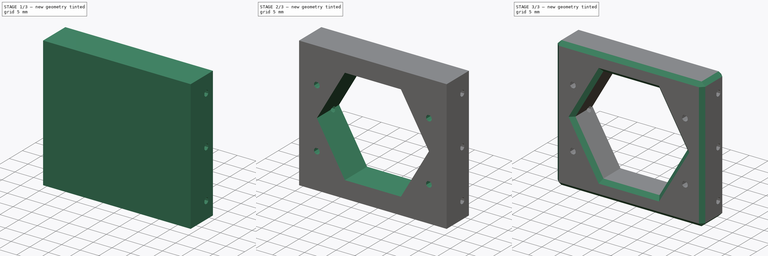
[diagram: build sequence overview — one tinted view per stage of 3, left to right]
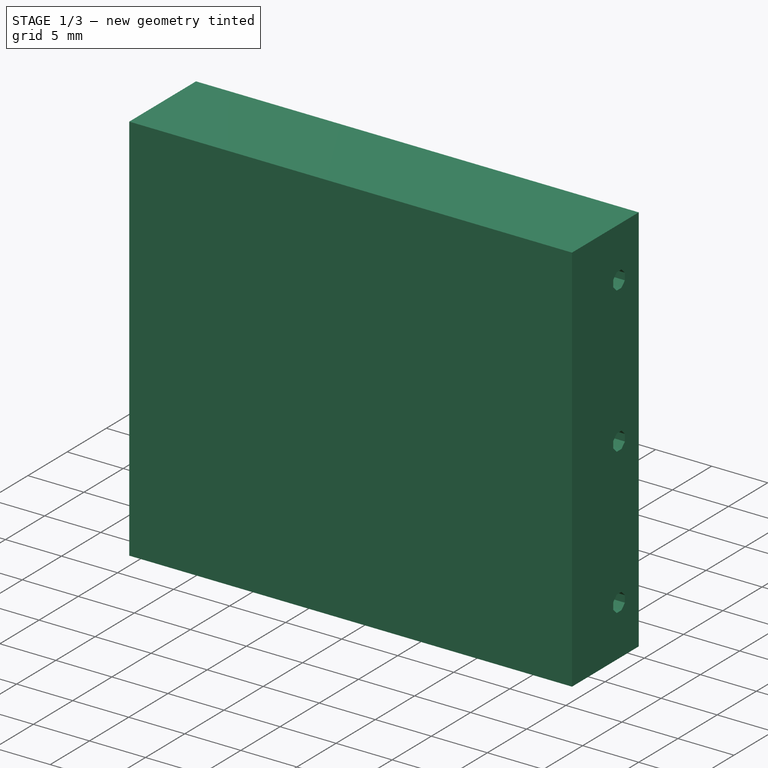
[diagram: stage 1 of 3 — iso view after this stage's code; geometry added in this stage tinted green]
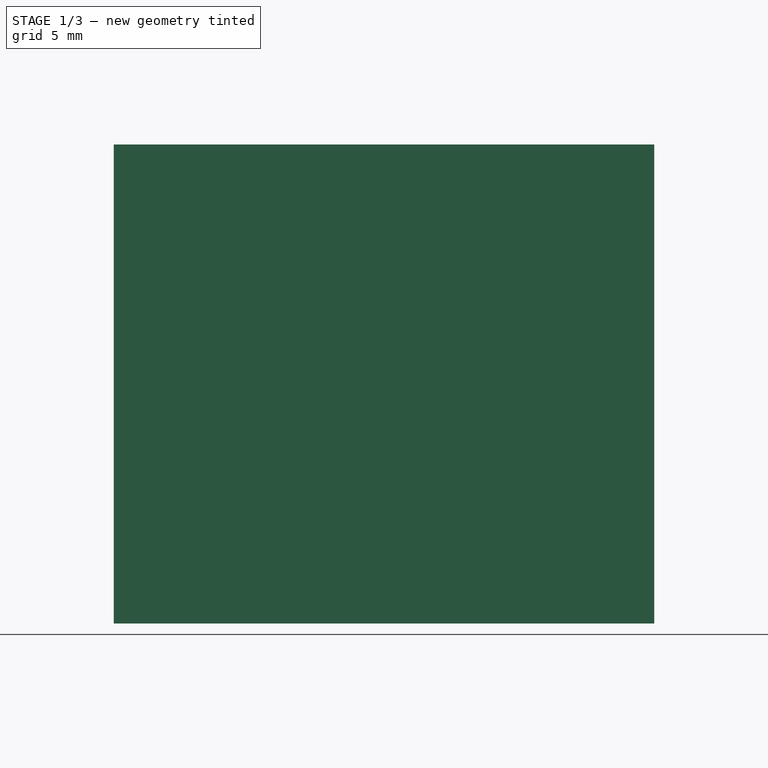
[diagram: stage 1 of 3 — front view after this stage's code; geometry added in this stage tinted green]
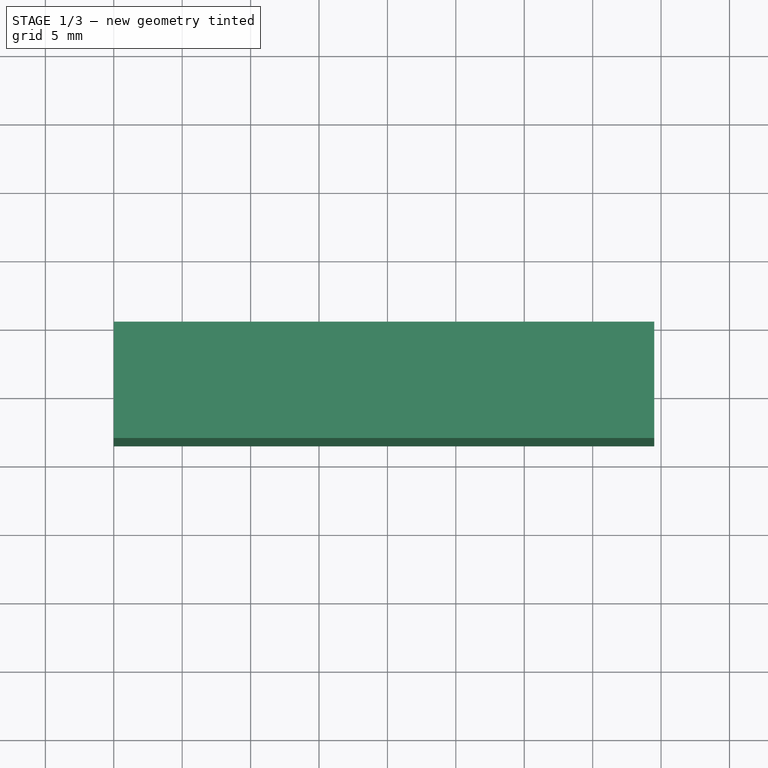
[diagram: stage 1 of 3 — top view after this stage's code; geometry added in this stage tinted green]
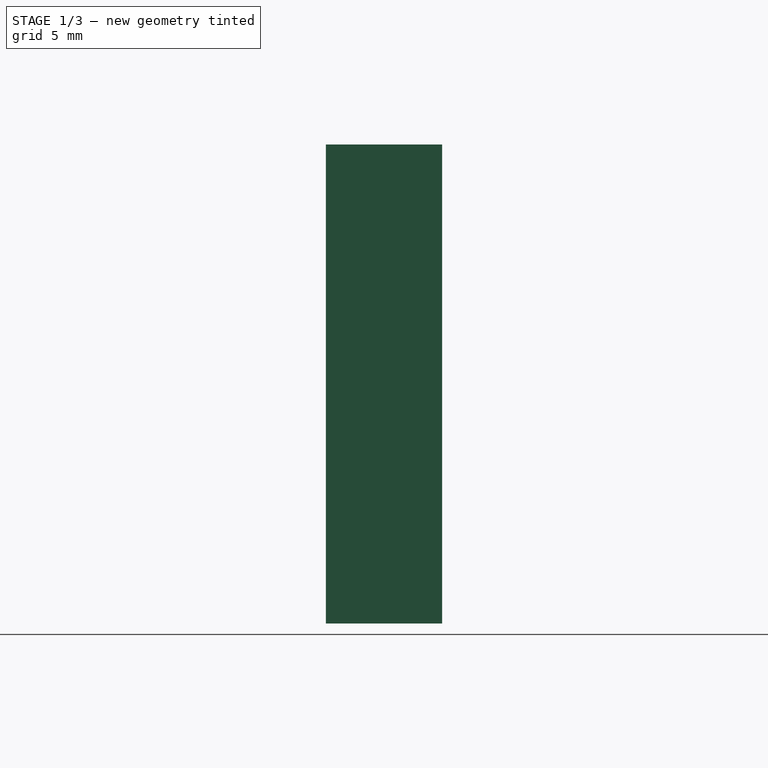
[diagram: stage 1 of 3 — right view after this stage's code; geometry added in this stage tinted green]
FCSTD DOCUMENT  (FreeCAD 0.21R33668 +26 (Git))
Label: Leg_frame_front
License: All rights reserved
LicenseURL: http://en.wikipedia.org/wiki/All_rights_reserved
objects: Sketcher::SketchObject×4, PartDesign::Pocket×3, PartDesign::Chamfer×2, PartDesign::Pad×1, PartDesign::Body×1
note: 17 computed .brp shape members not serialized (recipe doc carries the construction recipe); baked Part::Feature solids carry a one-line shape summary decoded from their .brp

FEATURE [Sketcher::SketchObject] Sketch
  FullyConstrained = true
  MapMode = 5
  Placement = pos=(0,0,0) rot=(1,0,0;1.5708rad)
  Support = -> [XZ_Plane]
  sketch-geometry (4):
    g0: LineSegment StartX=0 StartY=0 StartZ=0 EndX=39.5 EndY=0 EndZ=0
    g1: LineSegment StartX=39.5 StartY=0 StartZ=0 EndX=39.5 EndY=35 EndZ=0
    g2: LineSegment StartX=39.5 StartY=35 StartZ=0 EndX=0 EndY=35 EndZ=0
    g3: LineSegment StartX=0 StartY=35 StartZ=0 EndX=0 EndY=0 EndZ=0
  constraints (11):
    c: Coincident(g0,g1)
    c: Coincident(g1,g2)
    c: Coincident(g2,g3)
    c: Coincident(g3,g0)
    c: Horizontal(g0)
    c: Horizontal(g2)
    c: Vertical(g1)
    c: Vertical(g3)
    c: Coincident(g0,g-1)
    c: DistanceY(g3,g3) = 35
    c: DistanceX(g2,g2) = 39.5
FEATURE [PartDesign::Pad] Pad
  Direction = (0,-1,2e-16)
  Length = 8.5
  Length2 = 10
  Placement = pos=(0,0,0) rot=(1,0,0;1.5708rad)
  Profile = -> Sketch
  ReferenceAxis = -> Sketch [N_Axis]
  Type = 0
FEATURE [Sketcher::SketchObject] Sketch001
  ExternalGeometry = -> [Pad]
  FullyConstrained = true
  MapMode = 5
  Placement = pos=(39.5,0,0) rot=(0.707107,0,0.707107;3.14159rad)
  Support = -> [Pad]
  sketch-geometry (30):
    g0: LineSegment StartX=4.5 StartY=2.5 StartZ=0 EndX=17.5 EndY=2.5 EndZ=0
    g1: LineSegment StartX=17.5 StartY=2.5 StartZ=0 EndX=30.5 EndY=2.5 EndZ=0
    g2: LineSegment StartX=17.5 StartY=2.5 StartZ=0 EndX=17.5 EndY=-4e-15 EndZ=0
    g3: LineSegment StartX=4.19385 StartY=3.2391 StartZ=0 EndX=3.7609 EndY=2.80615 EndZ=0
    g4: LineSegment StartX=3.7609 StartY=2.80615 StartZ=0 EndX=3.7609 EndY=2.19385 EndZ=0
    g5: LineSegment StartX=3.7609 StartY=2.19385 StartZ=0 EndX=4.19385 EndY=1.7609 EndZ=0
    g6: LineSegment StartX=4.19385 StartY=1.7609 StartZ=0 EndX=4.80615 EndY=1.7609 EndZ=0
    g7: LineSegment StartX=4.80615 StartY=1.7609 StartZ=0 EndX=5.2391 EndY=2.19385 EndZ=0
    g8: LineSegment StartX=5.2391 StartY=2.19385 StartZ=0 EndX=5.2391 EndY=2.80615 EndZ=0
    g9: LineSegment StartX=5.2391 StartY=2.80615 StartZ=0 EndX=4.80615 EndY=3.2391 EndZ=0
    g10: LineSegment StartX=4.80615 StartY=3.2391 StartZ=0 EndX=4.19385 EndY=3.2391 EndZ=0
    g11: Circle CenterX=4.5 CenterY=2.5 CenterZ=0 NormalX=0 NormalY=0 NormalZ=1 AngleXU=0 Radius=0.8
    g12: LineSegment StartX=17.1939 StartY=3.2391 StartZ=0 EndX=16.7609 EndY=2.80615 EndZ=0
    g13: LineSegment StartX=16.7609 StartY=2.80615 StartZ=0 EndX=16.7609 EndY=2.19385 EndZ=0
    g14: LineSegment StartX=16.7609 StartY=2.19385 StartZ=0 EndX=17.1939 EndY=1.7609 EndZ=0
    g15: LineSegment StartX=17.1939 StartY=1.7609 StartZ=0 EndX=17.8061 EndY=1.7609 EndZ=0
    g16: LineSegment StartX=17.8061 StartY=1.7609 StartZ=0 EndX=18.2391 EndY=2.19385 EndZ=0
    g17: LineSegment StartX=18.2391 StartY=2.19385 StartZ=0 EndX=18.2391 EndY=2.80615 EndZ=0
    g18: LineSegment StartX=18.2391 StartY=2.80615 StartZ=0 EndX=17.8061 EndY=3.2391 EndZ=0
    g19: LineSegment StartX=17.8061 StartY=3.2391 StartZ=0 EndX=17.1939 EndY=3.2391 EndZ=0
    g20: Circle CenterX=17.5 CenterY=2.5 CenterZ=0 NormalX=0 NormalY=0 NormalZ=1 AngleXU=0 Radius=0.8
    g21: LineSegment StartX=30.1939 StartY=3.2391 StartZ=0 EndX=29.7609 EndY=2.80615 EndZ=0
    g22: LineSegment StartX=29.7609 StartY=2.80615 StartZ=0 EndX=29.7609 EndY=2.19385 EndZ=0
    g23: LineSegment StartX=29.7609 StartY=2.19385 StartZ=0 EndX=30.1939 EndY=1.7609 EndZ=0
    g24: LineSegment StartX=30.1939 StartY=1.7609 StartZ=0 EndX=30.8061 EndY=1.7609 EndZ=0
    g25: LineSegment StartX=30.8061 StartY=1.7609 StartZ=0 EndX=31.2391 EndY=2.19385 EndZ=0
    g26: LineSegment StartX=31.2391 StartY=2.19385 StartZ=0 EndX=31.2391 EndY=2.80615 EndZ=0
    g27: LineSegment StartX=31.2391 StartY=2.80615 StartZ=0 EndX=30.8061 EndY=3.2391 EndZ=0
    g28: LineSegment StartX=30.8061 StartY=3.2391 StartZ=0 EndX=30.1939 EndY=3.2391 EndZ=0
    g29: Circle CenterX=30.5 CenterY=2.5 CenterZ=0 NormalX=0 NormalY=0 NormalZ=1 AngleXU=0 Radius=0.8
  constraints (69):
    c: Horizontal(g0)
    c: Horizontal(g1)
    c: DistanceY(g-1,g0) = 2.5
    c: Equal(g1,g0)
    c: DistanceX(g0,g0) = 13
    c: PointOnObject(g2,g-3)
    c: Symmetric(g-3,g-3,g2)
    c: Coincident(g0,g2)
    c: Coincident(g0,g1)
    c: Coincident(g3,g4)
    c: Coincident(g4,g5)
    c: Coincident(g5,g6)
    c: Coincident(g6,g7)
    c: Coincident(g7,g8)
    c: Coincident(g8,g9)
    c: Coincident(g9,g10)
    c: Coincident(g10,g3)
    c: Equal(g3, g4-g10) x7
    c: PointOnObject(g3,g11)
    c: PointOnObject(g4,g11)
    c: PointOnObject(g5,g11)
    c: PointOnObject(g6,g11)
    c: PointOnObject(g7,g11)
    c: PointOnObject(g8,g11)
    c: PointOnObject(g9,g11)
    c: PointOnObject(g10,g11)
    c: Coincident(g11,g0)
    c: Coincident(g12,g13)
    c: Coincident(g13,g14)
    c: Coincident(g14,g15)
    c: Coincident(g15,g16)
    c: Coincident(g16,g17)
    c: Coincident(g17,g18)
    c: Coincident(g18,g19)
    c: Coincident(g19,g12)
    c: Equal(g12, g13-g19) x7
    c: PointOnObject(g12,g20)
    c: PointOnObject(g13,g20)
    c: PointOnObject(g14,g20)
    c: PointOnObject(g15,g20)
    c: PointOnObject(g16,g20)
    c: PointOnObject(g17,g20)
    c: PointOnObject(g18,g20)
    c: PointOnObject(g19,g20)
    c: Coincident(g20,g0)
    c: Coincident(g21,g22)
    c: Coincident(g22,g23)
    c: Coincident(g23,g24)
    c: Coincident(g24,g25)
    c: Coincident(g25,g26)
    c: Coincident(g26,g27)
    c: Coincident(g27,g28)
    c: Coincident(g28,g21)
    c: Equal(g21, g22-g28) x7
    c: PointOnObject(g21,g29)
    c: PointOnObject(g22,g29)
    c: PointOnObject(g23,g29)
    c: PointOnObject(g24,g29)
    c: PointOnObject(g25,g29)
    c: PointOnObject(g26,g29)
    c: PointOnObject(g27,g29)
    c: PointOnObject(g28,g29)
    c: Coincident(g29,g1)
    c: Horizontal(g28)
    c: Horizontal(g19)
    c: Horizontal(g10)
    c: Equal(g11,g20)
    c: Equal(g20,g29)
    c: Diameter(g11) = 1.6
FEATURE [PartDesign::Pocket] Pocket
  BaseFeature = -> Pad
  Direction = (-1,0,2e-16)
  Length = 10
  Length2 = 5
  Placement = pos=(0,0,0) rot=(1,0,0;1.5708rad)
  Profile = -> Sketch001
  ReferenceAxis = -> Sketch001 [N_Axis]
  Type = 0
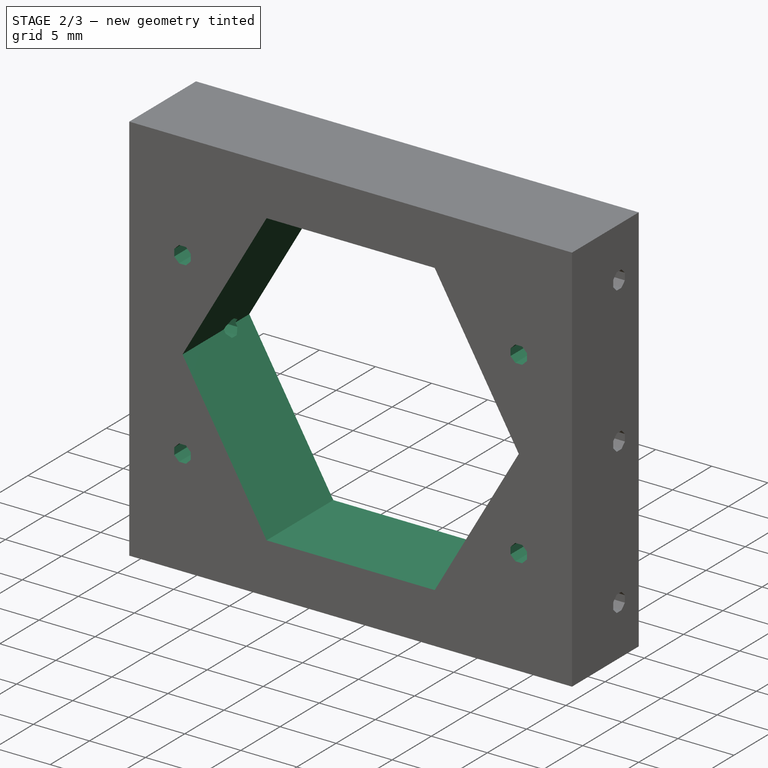
[diagram: stage 2 of 3 — iso view after this stage's code; geometry added in this stage tinted green]
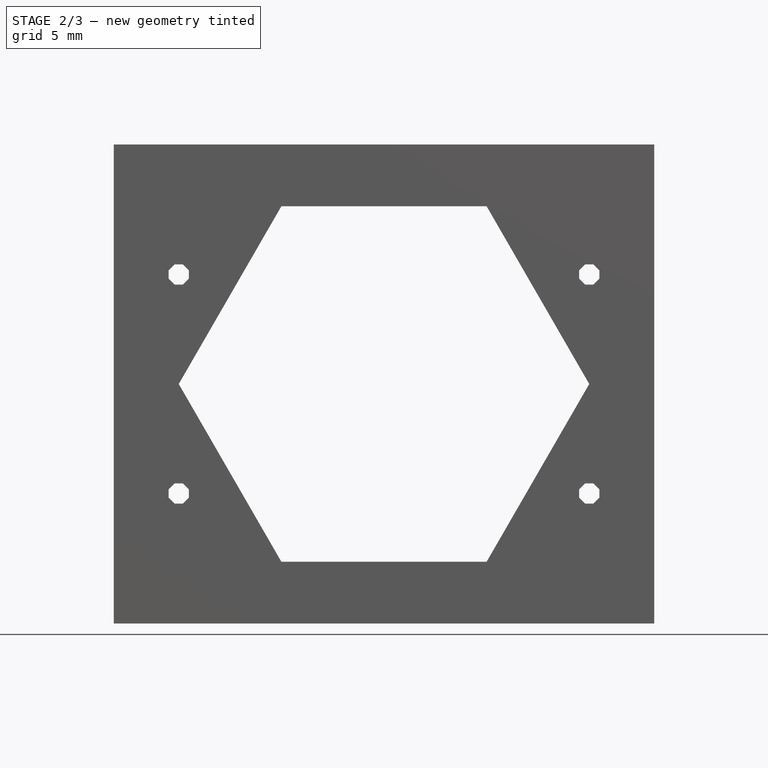
[diagram: stage 2 of 3 — front view after this stage's code; geometry added in this stage tinted green]
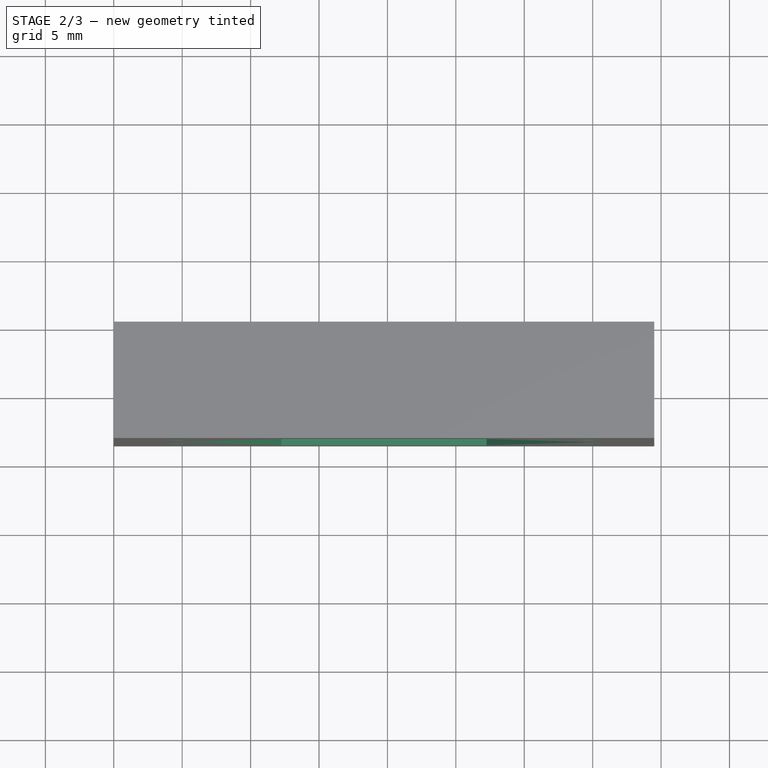
[diagram: stage 2 of 3 — top view after this stage's code; geometry added in this stage tinted green]
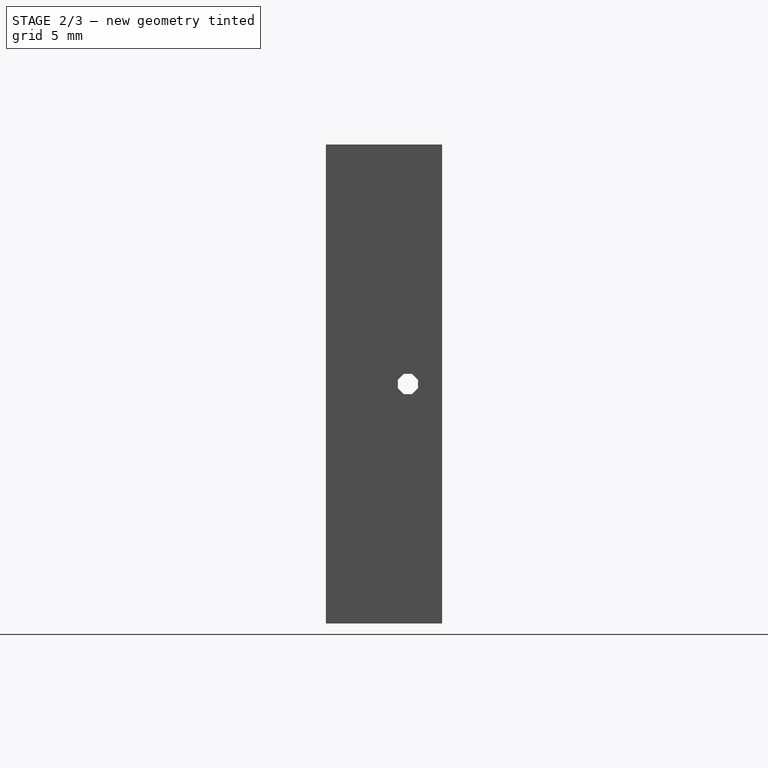
[diagram: stage 2 of 3 — right view after this stage's code; geometry added in this stage tinted green]
FEATURE [Sketcher::SketchObject] Sketch003
  ExternalGeometry = -> [Pad]
  FullyConstrained = true
  MapMode = 5
  Placement = pos=(0,0,0) rot=(0.707107,0,-0.707107;3.14159rad)
  Support = -> [Pocket]
  expr: Constraints[2] = Sketch001.Constraints[2]
  expr: Constraints[4] = Sketch001.Constraints[4]
  expr: Constraints[86] = Sketch001.Constraints[86]
  sketch-geometry (30):
    g0: LineSegment StartX=-30.5 StartY=2.5 StartZ=0 EndX=-17.5 EndY=2.5 EndZ=0
    g1: LineSegment StartX=-17.5 StartY=2.5 StartZ=0 EndX=-4.5 EndY=2.5 EndZ=0
    g2: LineSegment StartX=-17.5 StartY=2.5 StartZ=0 EndX=-17.5 EndY=-4e-15 EndZ=0
    g3: LineSegment StartX=-30.8061 StartY=3.2391 StartZ=0 EndX=-31.2391 EndY=2.80615 EndZ=0
    g4: LineSegment StartX=-31.2391 StartY=2.80615 StartZ=0 EndX=-31.2391 EndY=2.19385 EndZ=0
    g5: LineSegment StartX=-31.2391 StartY=2.19385 StartZ=0 EndX=-30.8061 EndY=1.7609 EndZ=0
    g6: LineSegment StartX=-30.8061 StartY=1.7609 StartZ=0 EndX=-30.1939 EndY=1.7609 EndZ=0
    g7: LineSegment StartX=-30.1939 StartY=1.7609 StartZ=0 EndX=-29.7609 EndY=2.19385 EndZ=0
    g8: LineSegment StartX=-29.7609 StartY=2.19385 StartZ=0 EndX=-29.7609 EndY=2.80615 EndZ=0
    g9: LineSegment StartX=-29.7609 StartY=2.80615 StartZ=0 EndX=-30.1939 EndY=3.2391 EndZ=0
    g10: LineSegment StartX=-30.1939 StartY=3.2391 StartZ=0 EndX=-30.8061 EndY=3.2391 EndZ=0
    g11: Circle CenterX=-30.5 CenterY=2.5 CenterZ=0 NormalX=0 NormalY=0 NormalZ=1 AngleXU=0 Radius=0.8
    g12: LineSegment StartX=-17.8061 StartY=3.2391 StartZ=0 EndX=-18.2391 EndY=2.80615 EndZ=0
    g13: LineSegment StartX=-18.2391 StartY=2.80615 StartZ=0 EndX=-18.2391 EndY=2.19385 EndZ=0
    g14: LineSegment StartX=-18.2391 StartY=2.19385 StartZ=0 EndX=-17.8061 EndY=1.7609 EndZ=0
    g15: LineSegment StartX=-17.8061 StartY=1.7609 StartZ=0 EndX=-17.1939 EndY=1.7609 EndZ=0
    g16: LineSegment StartX=-17.1939 StartY=1.7609 StartZ=0 EndX=-16.7609 EndY=2.19385 EndZ=0
    g17: LineSegment StartX=-16.7609 StartY=2.19385 StartZ=0 EndX=-16.7609 EndY=2.80615 EndZ=0
    g18: LineSegment StartX=-16.7609 StartY=2.80615 StartZ=0 EndX=-17.1939 EndY=3.2391 EndZ=0
    g19: LineSegment StartX=-17.1939 StartY=3.2391 StartZ=0 EndX=-17.8061 EndY=3.2391 EndZ=0
    g20: Circle CenterX=-17.5 CenterY=2.5 CenterZ=0 NormalX=0 NormalY=0 NormalZ=1 AngleXU=0 Radius=0.8
    g21: LineSegment StartX=-4.80615 StartY=3.2391 StartZ=0 EndX=-5.2391 EndY=2.80615 EndZ=0
    g22: LineSegment StartX=-5.2391 StartY=2.80615 StartZ=0 EndX=-5.2391 EndY=2.19385 EndZ=0
    g23: LineSegment StartX=-5.2391 StartY=2.19385 StartZ=0 EndX=-4.80615 EndY=1.7609 EndZ=0
    g24: LineSegment StartX=-4.80615 StartY=1.7609 StartZ=0 EndX=-4.19385 EndY=1.7609 EndZ=0
    g25: LineSegment StartX=-4.19385 StartY=1.7609 StartZ=0 EndX=-3.7609 EndY=2.19385 EndZ=0
    g26: LineSegment StartX=-3.7609 StartY=2.19385 StartZ=0 EndX=-3.7609 EndY=2.80615 EndZ=0
    g27: LineSegment StartX=-3.7609 StartY=2.80615 StartZ=0 EndX=-4.19385 EndY=3.2391 EndZ=0
    g28: LineSegment StartX=-4.19385 StartY=3.2391 StartZ=0 EndX=-4.80615 EndY=3.2391 EndZ=0
    g29: Circle CenterX=-4.5 CenterY=2.5 CenterZ=0 NormalX=0 NormalY=0 NormalZ=1 AngleXU=0 Radius=0.8
  constraints (69):
    c: Horizontal(g0)
    c: Horizontal(g1)
    c: DistanceY(g-1,g0) = 2.5
    c: Equal(g1,g0)
    c: DistanceX(g0,g0) = 13
    c: PointOnObject(g2,g-3)
    c: Symmetric(g-3,g-3,g2)
    c: Coincident(g0,g2)
    c: Coincident(g0,g1)
    c: Coincident(g3,g4)
    c: Coincident(g4,g5)
    c: Coincident(g5,g6)
    c: Coincident(g6,g7)
    c: Coincident(g7,g8)
    c: Coincident(g8,g9)
    c: Coincident(g9,g10)
    c: Coincident(g10,g3)
    c: Equal(g3, g4-g10) x7
    c: PointOnObject(g3,g11)
    c: PointOnObject(g4,g11)
    c: PointOnObject(g5,g11)
    c: PointOnObject(g6,g11)
    c: PointOnObject(g7,g11)
    c: PointOnObject(g8,g11)
    c: PointOnObject(g9,g11)
    c: PointOnObject(g10,g11)
    c: Coincident(g11,g0)
    c: Coincident(g12,g13)
    c: Coincident(g13,g14)
    c: Coincident(g14,g15)
    c: Coincident(g15,g16)
    c: Coincident(g16,g17)
    c: Coincident(g17,g18)
    c: Coincident(g18,g19)
    c: Coincident(g19,g12)
    c: Equal(g12, g13-g19) x7
    c: PointOnObject(g12,g20)
    c: PointOnObject(g13,g20)
    c: PointOnObject(g14,g20)
    c: PointOnObject(g15,g20)
    c: PointOnObject(g16,g20)
    c: PointOnObject(g17,g20)
    c: PointOnObject(g18,g20)
    c: PointOnObject(g19,g20)
    c: Coincident(g20,g0)
    c: Coincident(g21,g22)
    c: Coincident(g22,g23)
    c: Coincident(g23,g24)
    c: Coincident(g24,g25)
    c: Coincident(g25,g26)
    c: Coincident(g26,g27)
    c: Coincident(g27,g28)
    c: Coincident(g28,g21)
    c: Equal(g21, g22-g28) x7
    c: PointOnObject(g21,g29)
    c: PointOnObject(g22,g29)
    c: PointOnObject(g23,g29)
    c: PointOnObject(g24,g29)
    c: PointOnObject(g25,g29)
    c: PointOnObject(g26,g29)
    c: PointOnObject(g27,g29)
    c: PointOnObject(g28,g29)
    c: Coincident(g29,g1)
    c: Horizontal(g28)
    c: Horizontal(g19)
    c: Horizontal(g10)
    c: Equal(g11,g20)
    c: Equal(g20,g29)
    c: Diameter(g11) = 1.6
FEATURE [PartDesign::Pocket] Pocket001
  BaseFeature = -> Pocket
  Direction = (1,0,2e-16)
  Length = 10
  Length2 = 5
  Placement = pos=(0,0,0) rot=(1,0,0;1.5708rad)
  Profile = -> Sketch003
  ReferenceAxis = -> Sketch003 [N_Axis]
  Type = 0
FEATURE [Sketcher::SketchObject] Sketch004
  ExternalGeometry = -> [Pocket001]
  FullyConstrained = true
  MapMode = 5
  Placement = pos=(0,-8.5,0) rot=(1,0,0;1.5708rad)
  Support = -> [Pocket001]
  sketch-geometry (49):
    g0: LineSegment StartX=4.75 StartY=25.5 StartZ=0 EndX=34.75 EndY=25.5 EndZ=0
    g1: LineSegment StartX=34.75 StartY=25.5 StartZ=0 EndX=34.75 EndY=9.5 EndZ=0
    g2: LineSegment StartX=34.75 StartY=9.5 StartZ=0 EndX=4.75 EndY=9.5 EndZ=0
    g3: LineSegment StartX=4.75 StartY=9.5 StartZ=0 EndX=4.75 EndY=25.5 EndZ=0
    g4: LineSegment StartX=0 StartY=17.5 StartZ=0 EndX=39.5 EndY=17.5 EndZ=0
    g5: LineSegment StartX=19.75 StartY=35 StartZ=0 EndX=19.75 EndY=0 EndZ=0
    g6: LineSegment StartX=4.44385 StartY=26.2391 StartZ=0 EndX=4.0109 EndY=25.8061 EndZ=0
    g7: LineSegment StartX=4.0109 StartY=25.8061 StartZ=0 EndX=4.0109 EndY=25.1939 EndZ=0
    g8: LineSegment StartX=4.0109 StartY=25.1939 StartZ=0 EndX=4.44385 EndY=24.7609 EndZ=0
    g9: LineSegment StartX=4.44385 StartY=24.7609 StartZ=0 EndX=5.05615 EndY=24.7609 EndZ=0
    g10: LineSegment StartX=5.05615 StartY=24.7609 StartZ=0 EndX=5.4891 EndY=25.1939 EndZ=0
    g11: LineSegment StartX=5.4891 StartY=25.1939 StartZ=0 EndX=5.4891 EndY=25.8061 EndZ=0
    g12: LineSegment StartX=5.4891 StartY=25.8061 StartZ=0 EndX=5.05615 EndY=26.2391 EndZ=0
    g13: LineSegment StartX=5.05615 StartY=26.2391 StartZ=0 EndX=4.44385 EndY=26.2391 EndZ=0
    g14: Circle CenterX=4.75 CenterY=25.5 CenterZ=0 NormalX=0 NormalY=0 NormalZ=1 AngleXU=0 Radius=0.8
    g15: LineSegment StartX=34.4439 StartY=26.2391 StartZ=0 EndX=34.0109 EndY=25.8061 EndZ=0
    g16: LineSegment StartX=34.0109 StartY=25.8061 StartZ=0 EndX=34.0109 EndY=25.1939 EndZ=0
    g17: LineSegment StartX=34.0109 StartY=25.1939 StartZ=0 EndX=34.4439 EndY=24.7609 EndZ=0
    g18: LineSegment StartX=34.4439 StartY=24.7609 StartZ=0 EndX=35.0561 EndY=24.7609 EndZ=0
    g19: LineSegment StartX=35.0561 StartY=24.7609 StartZ=0 EndX=35.4891 EndY=25.1939 EndZ=0
    g20: LineSegment StartX=35.4891 StartY=25.1939 StartZ=0 EndX=35.4891 EndY=25.8061 EndZ=0
    g21: LineSegment StartX=35.4891 StartY=25.8061 StartZ=0 EndX=35.0561 EndY=26.2391 EndZ=0
    g22: LineSegment StartX=35.0561 StartY=26.2391 StartZ=0 EndX=34.4439 EndY=26.2391 EndZ=0
    g23: Circle CenterX=34.75 CenterY=25.5 CenterZ=0 NormalX=0 NormalY=0 NormalZ=1 AngleXU=0 Radius=0.8
    g24: LineSegment StartX=34.4439 StartY=10.2391 StartZ=0 EndX=34.0109 EndY=9.80615 EndZ=0
    g25: LineSegment StartX=34.0109 StartY=9.80615 StartZ=0 EndX=34.0109 EndY=9.19385 EndZ=0
    g26: LineSegment StartX=34.0109 StartY=9.19385 StartZ=0 EndX=34.4439 EndY=8.7609 EndZ=0
    g27: LineSegment StartX=34.4439 StartY=8.7609 StartZ=0 EndX=35.0561 EndY=8.7609 EndZ=0
    g28: LineSegment StartX=35.0561 StartY=8.7609 StartZ=0 EndX=35.4891 EndY=9.19385 EndZ=0
    g29: LineSegment StartX=35.4891 StartY=9.19385 StartZ=0 EndX=35.4891 EndY=9.80615 EndZ=0
    g30: LineSegment StartX=35.4891 StartY=9.80615 StartZ=0 EndX=35.0561 EndY=10.2391 EndZ=0
    g31: LineSegment StartX=35.0561 StartY=10.2391 StartZ=0 EndX=34.4439 EndY=10.2391 EndZ=0
    g32: Circle CenterX=34.75 CenterY=9.5 CenterZ=0 NormalX=0 NormalY=0 NormalZ=1 AngleXU=0 Radius=0.8
    g33: LineSegment StartX=4.44385 StartY=10.2391 StartZ=0 EndX=4.0109 EndY=9.80615 EndZ=0
    g34: LineSegment StartX=4.0109 StartY=9.80615 StartZ=0 EndX=4.0109 EndY=9.19385 EndZ=0
    g35: LineSegment StartX=4.0109 StartY=9.19385 StartZ=0 EndX=4.44385 EndY=8.7609 EndZ=0
    g36: LineSegment StartX=4.44385 StartY=8.7609 StartZ=0 EndX=5.05615 EndY=8.7609 EndZ=0
    g37: LineSegment StartX=5.05615 StartY=8.7609 StartZ=0 EndX=5.4891 EndY=9.19385 EndZ=0
    g38: LineSegment StartX=5.4891 StartY=9.19385 StartZ=0 EndX=5.4891 EndY=9.80615 EndZ=0
    g39: LineSegment StartX=5.4891 StartY=9.80615 StartZ=0 EndX=5.05615 EndY=10.2391 EndZ=0
    g40: LineSegment StartX=5.05615 StartY=10.2391 StartZ=0 EndX=4.44385 EndY=10.2391 EndZ=0
    g41: Circle CenterX=4.75 CenterY=9.5 CenterZ=0 NormalX=0 NormalY=0 NormalZ=1 AngleXU=0 Radius=0.8
    g42: LineSegment StartX=12.25 StartY=4.50962 StartZ=0 EndX=27.25 EndY=4.50962 EndZ=0
    g43: LineSegment StartX=27.25 StartY=4.50962 StartZ=0 EndX=34.75 EndY=17.5 EndZ=0
    g44: LineSegment StartX=34.75 StartY=17.5 StartZ=0 EndX=27.25 EndY=30.4904 EndZ=0
    g45: LineSegment StartX=27.25 StartY=30.4904 StartZ=0 EndX=12.25 EndY=30.4904 EndZ=0
    g46: LineSegment StartX=12.25 StartY=30.4904 StartZ=0 EndX=4.75 EndY=17.5 EndZ=0
    g47: LineSegment StartX=4.75 StartY=17.5 StartZ=0 EndX=12.25 EndY=4.50962 EndZ=0
    g48: Circle CenterX=19.75 CenterY=17.5 CenterZ=0 NormalX=0 NormalY=0 NormalZ=1 AngleXU=0 Radius=15
  constraints (113):
    c: Coincident(g0,g1)
    c: Coincident(g1,g2)
    c: Coincident(g2,g3)
    c: Coincident(g3,g0)
    c: Horizontal(g2)
    c: Vertical(g1)
    c: PointOnObject(g4,g-4)
    c: PointOnObject(g4,g-6)
    c: PointOnObject(g5,g-3)
    c: PointOnObject(g5,g-5)
    c: Symmetric(g-5,g-4,g4)
    c: Symmetric(g-6,g-4,g5)
    c: Symmetric(g0,g2,g4)
    c: Symmetric(g0,g0,g5)
    c: DistanceY(g4,g0) = 8
    c: DistanceX(g0,g0) = 30
    c: Coincident(g6,g7)
    c: Coincident(g7,g8)
    c: Coincident(g8,g9)
    c: Coincident(g9,g10)
    c: Coincident(g10,g11)
    c: Coincident(g11,g12)
    c: Coincident(g12,g13)
    c: Coincident(g13,g6)
    c: Equal(g6, g7-g13) x7
    c: PointOnObject(g6,g14)
    c: PointOnObject(g7,g14)
    c: PointOnObject(g8,g14)
    c: PointOnObject(g9,g14)
    c: PointOnObject(g10,g14)
    c: PointOnObject(g11,g14)
    c: PointOnObject(g12,g14)
    c: PointOnObject(g13,g14)
    c: Coincident(g14,g0)
    c: Coincident(g15,g16)
    c: Coincident(g16,g17)
    c: Coincident(g17,g18)
    c: Coincident(g18,g19)
    c: Coincident(g19,g20)
    c: Coincident(g20,g21)
    c: Coincident(g21,g22)
    c: Coincident(g22,g15)
    c: Equal(g15, g16-g22) x7
    c: PointOnObject(g15,g23)
    c: PointOnObject(g16,g23)
    c: PointOnObject(g17,g23)
    c: PointOnObject(g18,g23)
    c: PointOnObject(g19,g23)
    c: PointOnObject(g20,g23)
    c: PointOnObject(g21,g23)
    c: PointOnObject(g22,g23)
    c: Coincident(g23,g0)
    c: Coincident(g24,g25)
    c: Coincident(g25,g26)
    c: Coincident(g26,g27)
    c: Coincident(g27,g28)
    c: Coincident(g28,g29)
    c: Coincident(g29,g30)
    c: Coincident(g30,g31)
    c: Coincident(g31,g24)
    c: Equal(g24, g25-g31) x7
    c: PointOnObject(g24,g32)
    c: PointOnObject(g25,g32)
    c: PointOnObject(g26,g32)
    c: PointOnObject(g27,g32)
    c: PointOnObject(g28,g32)
    c: PointOnObject(g29,g32)
    c: PointOnObject(g30,g32)
    c: PointOnObject(g31,g32)
    c: Coincident(g32,g1)
    c: Coincident(g33,g34)
    c: Coincident(g34,g35)
    c: Coincident(g35,g36)
    c: Coincident(g36,g37)
    c: Coincident(g37,g38)
    c: Coincident(g38,g39)
    c: Coincident(g39,g40)
    c: Coincident(g40,g33)
    c: Equal(g33, g34-g40) x7
    c: PointOnObject(g33,g41)
    c: PointOnObject(g34,g41)
    c: PointOnObject(g35,g41)
    c: PointOnObject(g36,g41)
    c: PointOnObject(g37,g41)
    c: PointOnObject(g38,g41)
    c: PointOnObject(g39,g41)
    c: PointOnObject(g40,g41)
    c: Coincident(g41,g2)
    c: Horizontal(g40)
    c: Horizontal(g13)
    c: Horizontal(g22)
    c: Horizontal(g31)
    c: Equal(g23,g41)
    c: Equal(g41,g14)
    c: Equal(g14,g32)
    c: Diameter(g32) = 1.6
    c: Coincident(g42,g43)
    c: Coincident(g43,g44)
    c: Coincident(g44,g45)
    c: Coincident(g45,g46)
    c: Coincident(g46,g47)
    c: Coincident(g47,g42)
    c: Equal(g42, g43-g47) x5
    c: PointOnObject(g42,g48)
    c: PointOnObject(g43,g48)
    c: PointOnObject(g44,g48)
    c: PointOnObject(g45,g48)
    c: PointOnObject(g46,g48)
    c: PointOnObject(g47,g48)
    c: PointOnObject(g48,g5)
    c: PointOnObject(g48,g4)
    c: Horizontal(g45)
    c: Diameter(g48) = 30
FEATURE [PartDesign::Pocket] Pocket002
  BaseFeature = -> Pocket001
  Direction = (0,1,-2e-16)
  Length = 5
  Length2 = 5
  Placement = pos=(0,0,0) rot=(1,0,0;1.5708rad)
  Profile = -> Sketch004
  ReferenceAxis = -> Sketch004 [N_Axis]
  Type = 1
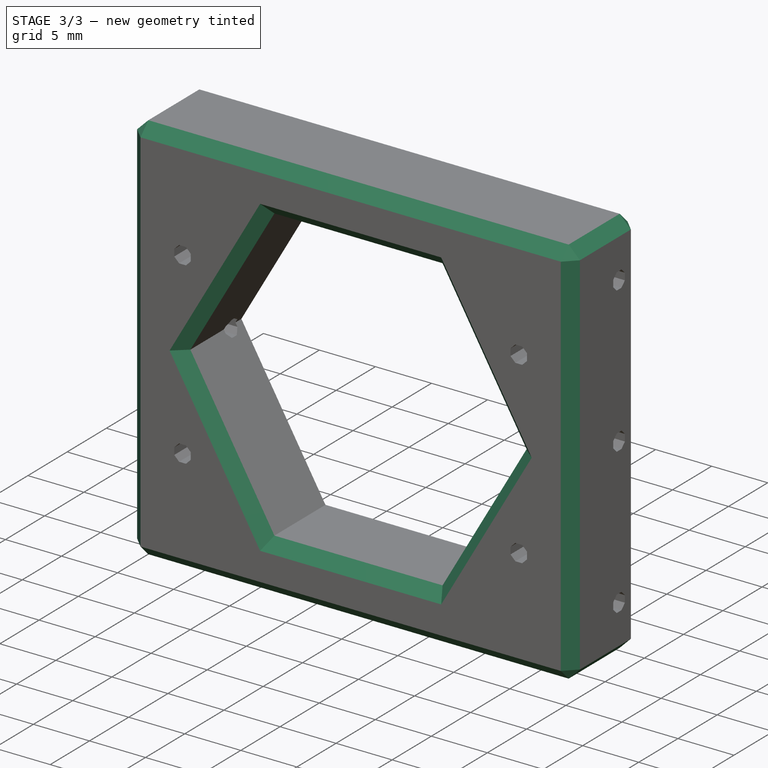
[diagram: stage 3 of 3 — iso view after this stage's code; geometry added in this stage tinted green]
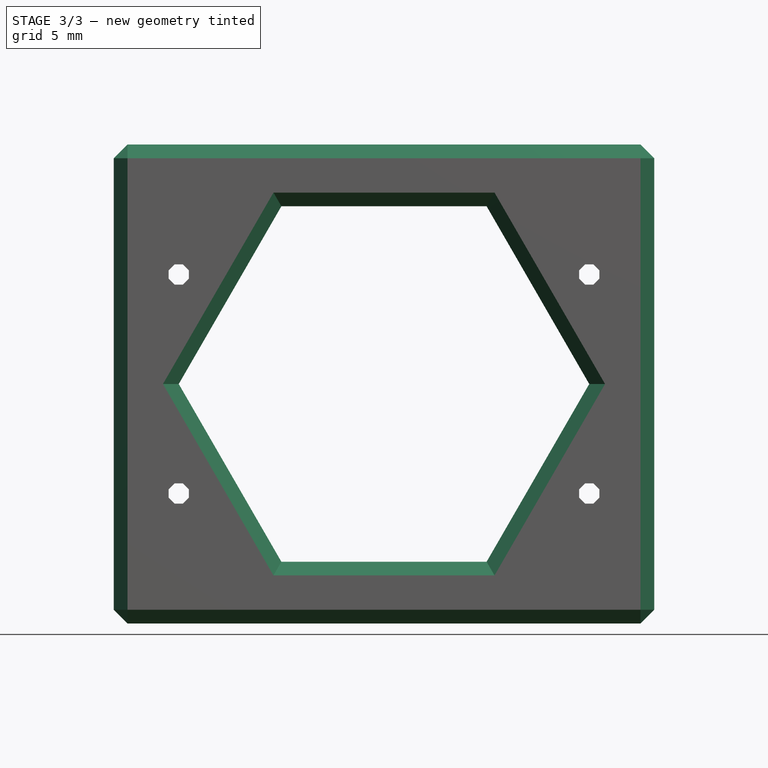
[diagram: stage 3 of 3 — front view after this stage's code; geometry added in this stage tinted green]
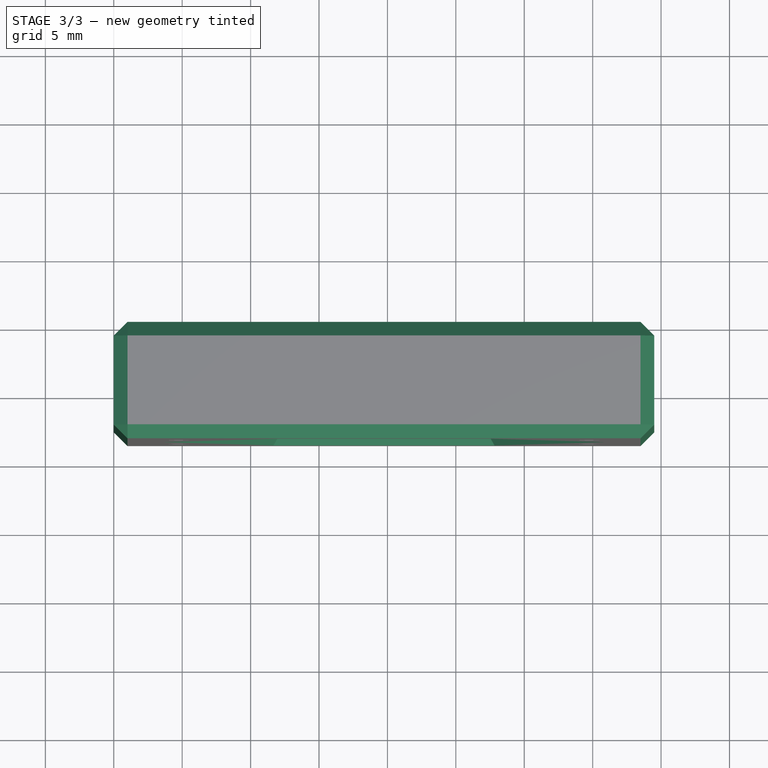
[diagram: stage 3 of 3 — top view after this stage's code; geometry added in this stage tinted green]
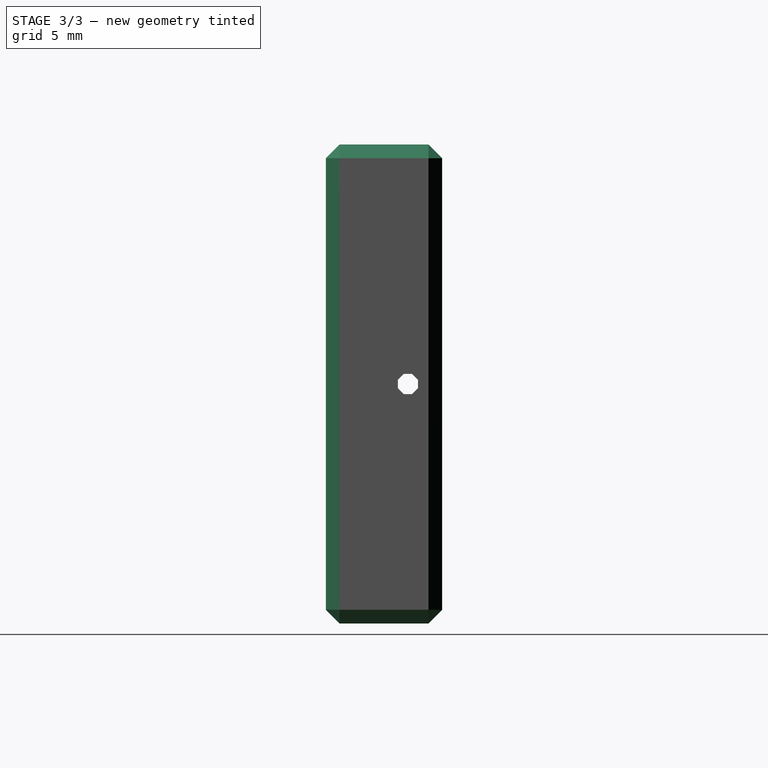
[diagram: stage 3 of 3 — right view after this stage's code; geometry added in this stage tinted green]
FEATURE [PartDesign::Chamfer] Chamfer
  Angle = 45
  Base = -> Pocket002 [Edge34,Edge5,Edge1,Edge2,Edge33,Edge4,Edge3,Edge32,Edge6,Edge7,Edge98,Edge59]
  BaseFeature = -> Pocket002
  ChamferType = 0
  FlipDirection = false
  Placement = pos=(0,0,0) rot=(1,0,0;1.5708rad)
  Size = 1
  Size2 = 1
  SupportTransform = false
  UseAllEdges = false
FEATURE [PartDesign::Chamfer] Chamfer001
  Angle = 45
  Base = -> Chamfer [Edge111,Edge112,Edge110,Edge109,Edge108,Edge107,Edge75,Edge76,Edge77,Edge78,Edge73,Edge74]
  BaseFeature = -> Chamfer
  ChamferType = 0
  FlipDirection = false
  Placement = pos=(0,0,0) rot=(1,0,0;1.5708rad)
  Size = 1
  Size2 = 1
  SupportTransform = false
  UseAllEdges = false
FEATURE [PartDesign::Body] Body
  Group = -> [Sketch,Pad,Sketch001,Pocket,Sketch003,Pocket001,Sketch004,Pocket002,Chamfer,Chamfer001]
  Origin = -> Origin
  Tip = -> Chamfer001
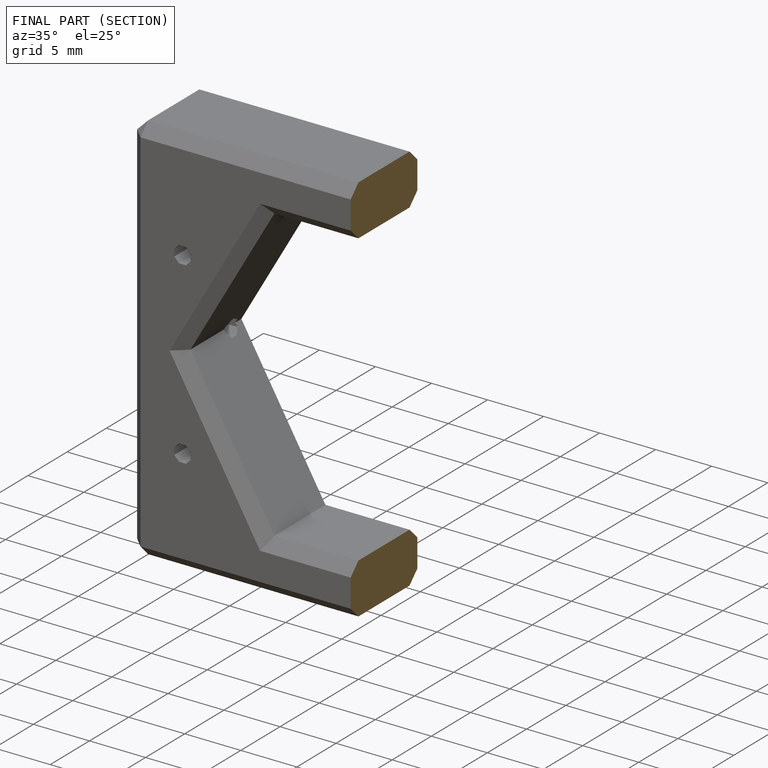
[diagram: finished part — half-section view (interior)]
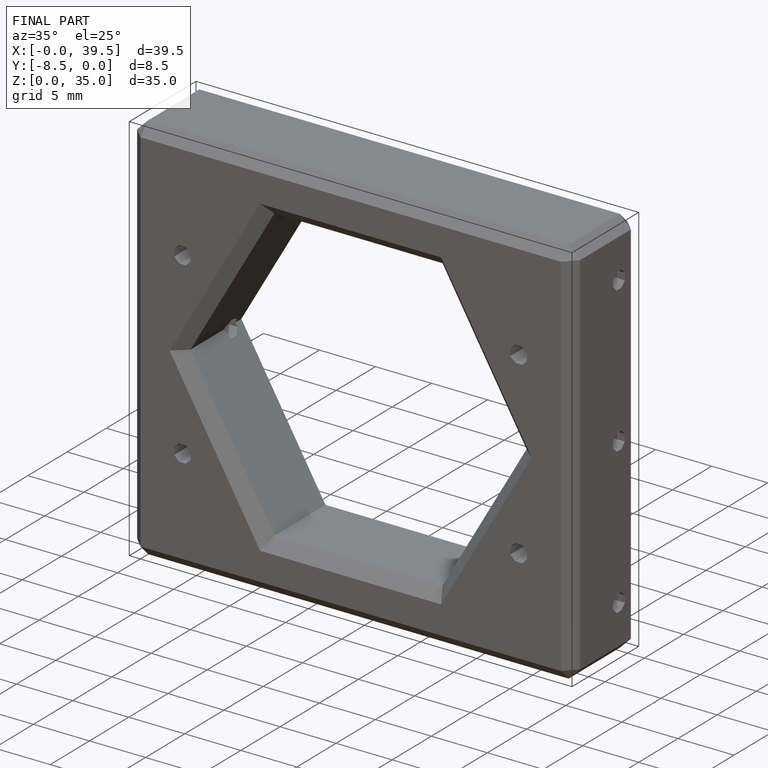
[diagram: finished part — iso view with bounding-box wireframe]
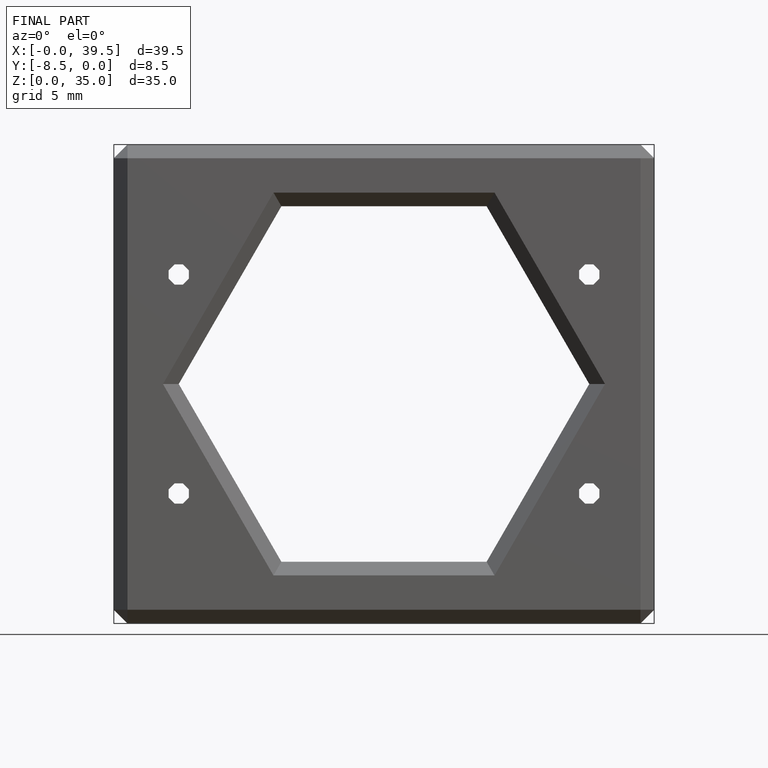
[diagram: finished part — front view with bounding-box wireframe]
